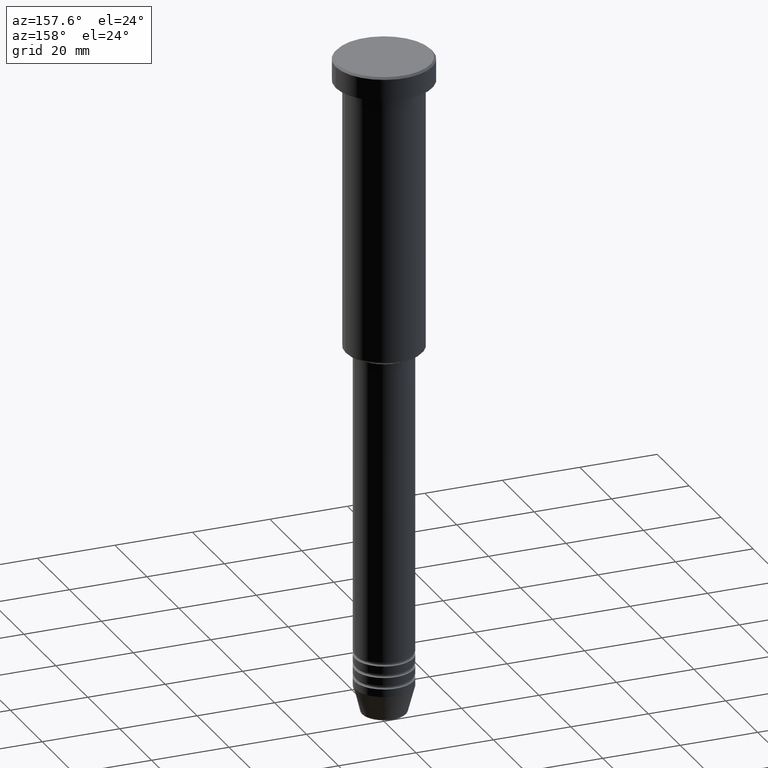
[diagram: clean part render]
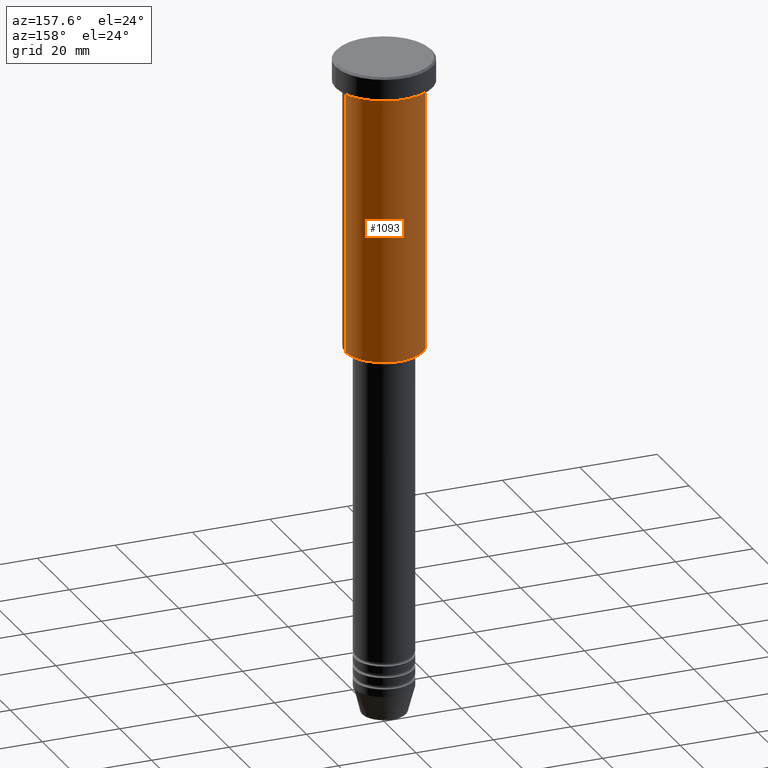
[diagram: same view with one face highlighted and labeled with its STEP entity id]
A machine part, auxiliary view. The second image highlights one B-rep face of the part: STEP entity #1093.
In plain terms, the highlighted cylindrical surface (partial cylindrical patch) has radius 10 mm, axis along (-0, -0, 1).
Its self-contained STEP definition (entity closure, byte-faithful):
#32 = CARTESIAN_POINT ( 'NONE',  ( -10.00000000000000000, 1.224646799147353256E-15, -75.49999999999998579 ) ) ;
#69 = FACE_OUTER_BOUND ( 'NONE', #707, .T. ) ;
#108 = EDGE_CURVE ( 'NONE', #377, #540, #1108, .T. ) ;
#116 = ORIENTED_EDGE ( 'NONE', *, *, #500, .F. ) ;
#124 = VERTEX_POINT ( 'NONE', #806 ) ;
#133 = CARTESIAN_POINT ( 'NONE',  ( -10.00000000000000000, 1.224646799147353256E-15, -6.999999999999996447 ) ) ;
#149 = ORIENTED_EDGE ( 'NONE', *, *, #297, .T. ) ;
#158 = DIRECTION ( 'NONE',  ( 1.000000000000000000, 0.000000000000000000, 0.000000000000000000 ) ) ;
#188 = DIRECTION ( 'NONE',  ( -1.000000000000000000, 0.000000000000000000, 0.000000000000000000 ) ) ;
#236 = CYLINDRICAL_SURFACE ( 'NONE', #743, 10.00000000000000000 ) ;
#238 = DIRECTION ( 'NONE',  ( -0.000000000000000000, -0.000000000000000000, 1.000000000000000000 ) ) ;
#297 = EDGE_CURVE ( 'NONE', #124, #983, #785, .T. ) ;
#312 = DIRECTION ( 'NONE',  ( -0.000000000000000000, -0.000000000000000000, 1.000000000000000000 ) ) ;
#334 = CARTESIAN_POINT ( 'NONE',  ( 0.000000000000000000, 0.000000000000000000, 0.000000000000000000 ) ) ;
#377 = VERTEX_POINT ( 'NONE', #635 ) ;
#397 = CARTESIAN_POINT ( 'NONE',  ( -10.00000000000000000, 1.224646799147353256E-15, 0.000000000000000000 ) ) ;
#469 = ORIENTED_EDGE ( 'NONE', *, *, #954, .T. ) ;
#492 = LINE ( 'NONE', #1053, #801 ) ;
#500 = EDGE_CURVE ( 'NONE', #124, #377, #492, .T. ) ;
#540 = VERTEX_POINT ( 'NONE', #133 ) ;
#589 = VECTOR ( 'NONE', #312, 1000.000000000000000 ) ;
#590 = AXIS2_PLACEMENT_3D ( 'NONE', #697, #751, #158 ) ;
#620 = DIRECTION ( 'NONE',  ( 1.000000000000000000, 0.000000000000000000, 0.000000000000000000 ) ) ;
#635 = CARTESIAN_POINT ( 'NONE',  ( 10.00000000000000000, 0.000000000000000000, -6.999999999999996447 ) ) ;
#638 = DIRECTION ( 'NONE',  ( -0.000000000000000000, -0.000000000000000000, 1.000000000000000000 ) ) ;
#682 = LINE ( 'NONE', #397, #589 ) ;
#697 = CARTESIAN_POINT ( 'NONE',  ( 0.000000000000000000, 0.000000000000000000, -6.999999999999996447 ) ) ;
#707 = EDGE_LOOP ( 'NONE', ( #149, #469, #800, #116 ) ) ;
#730 = CARTESIAN_POINT ( 'NONE',  ( 0.000000000000000000, 0.000000000000000000, -75.49999999999998579 ) ) ;
#743 = AXIS2_PLACEMENT_3D ( 'NONE', #334, #238, #620 ) ;
#751 = DIRECTION ( 'NONE',  ( -0.000000000000000000, -0.000000000000000000, 1.000000000000000000 ) ) ;
#785 = CIRCLE ( 'NONE', #920, 10.00000000000000000 ) ;
#800 = ORIENTED_EDGE ( 'NONE', *, *, #108, .F. ) ;
#801 = VECTOR ( 'NONE', #1058, 1000.000000000000000 ) ;
#806 = CARTESIAN_POINT ( 'NONE',  ( 10.00000000000000000, 0.000000000000000000, -75.49999999999998579 ) ) ;
#920 = AXIS2_PLACEMENT_3D ( 'NONE', #730, #638, #188 ) ;
#954 = EDGE_CURVE ( 'NONE', #983, #540, #682, .T. ) ;
#983 = VERTEX_POINT ( 'NONE', #32 ) ;
#1053 = CARTESIAN_POINT ( 'NONE',  ( 10.00000000000000000, 0.000000000000000000, 0.000000000000000000 ) ) ;
#1058 = DIRECTION ( 'NONE',  ( -0.000000000000000000, -0.000000000000000000, 1.000000000000000000 ) ) ;
#1093 = ADVANCED_FACE ( 'NONE', ( #69 ), #236, .T. ) ;
#1108 = CIRCLE ( 'NONE', #590, 10.00000000000000000 ) ;